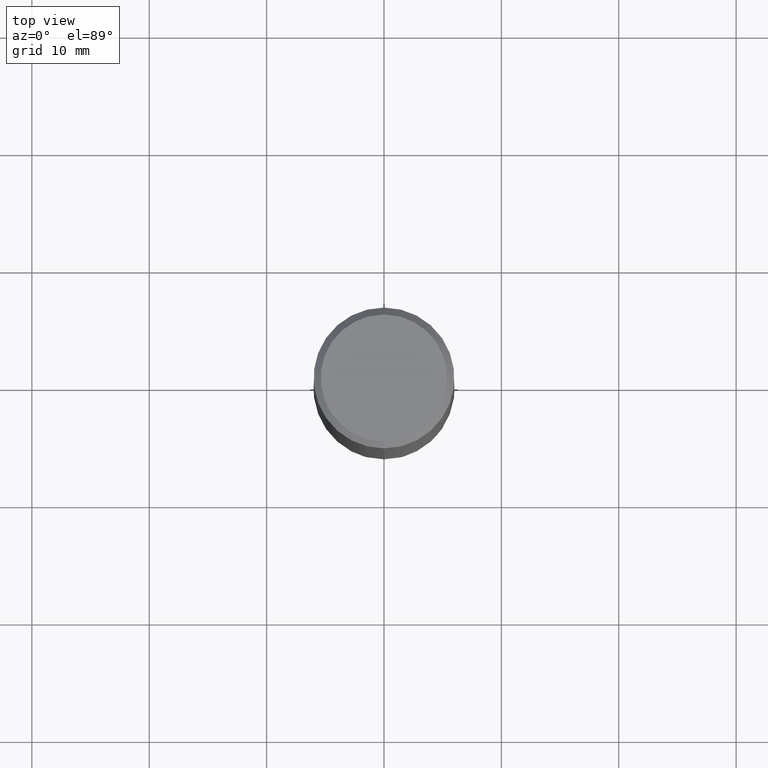
[diagram: clean part render]
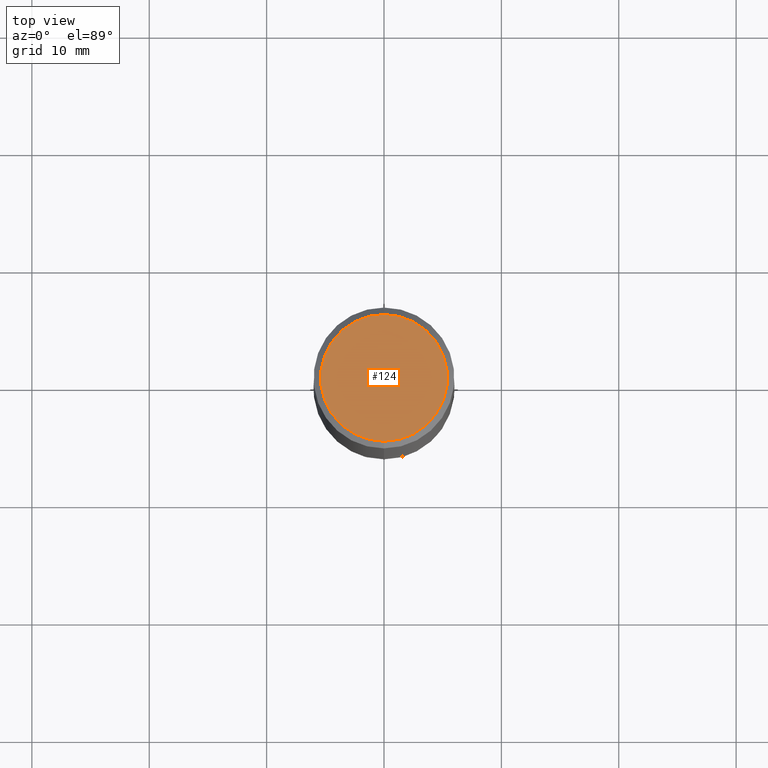
[diagram: same view with one face highlighted and labeled with its STEP entity id]
A machine part, top view. The second image highlights one B-rep face of the part: STEP entity #124.
In plain terms, the highlighted planar face has unit normal (-0, 0, 1).
Its self-contained STEP definition (entity closure, byte-faithful):
#66=VERTEX_POINT('',#160);
#72=EDGE_CURVE('',#92,#66,#168,.T.);
#92=VERTEX_POINT('',#190);
#108=EDGE_CURVE('',#66,#92,#208,.T.);
#124=ADVANCED_FACE('',(#224),#225,.T.);
#160=CARTESIAN_POINT('',(6.61287431064084E-016,-5.4,0.0));
#168=CIRCLE('',#264,5.4);
#190=CARTESIAN_POINT('',(0.0,5.4,0.0));
#208=CIRCLE('',#311,5.4);
#224=FACE_OUTER_BOUND('',#335,.T.);
#225=PLANE('',#336);
#264=AXIS2_PLACEMENT_3D('',#381,#382,#383);
#311=AXIS2_PLACEMENT_3D('',#429,#430,#431);
#335=EDGE_LOOP('',(#442,#443));
#336=AXIS2_PLACEMENT_3D('',#444,#445,#446);
#381=CARTESIAN_POINT('',(0.0,0.0,0.0));
#382=DIRECTION('',(0.0,0.0,-1.0));
#383=DIRECTION('',(0.0,1.0,0.0));
#429=CARTESIAN_POINT('',(0.0,0.0,0.0));
#430=DIRECTION('',(0.0,0.0,-1.0));
#431=DIRECTION('',(0.0,1.0,0.0));
#442=ORIENTED_EDGE('',*,*,#72,.F.);
#443=ORIENTED_EDGE('',*,*,#108,.F.);
#444=CARTESIAN_POINT('',(0.0,2.7,0.0));
#445=DIRECTION('',(-0.0,0.0,1.0));
#446=DIRECTION('',(0.0,-1.0,0.0));